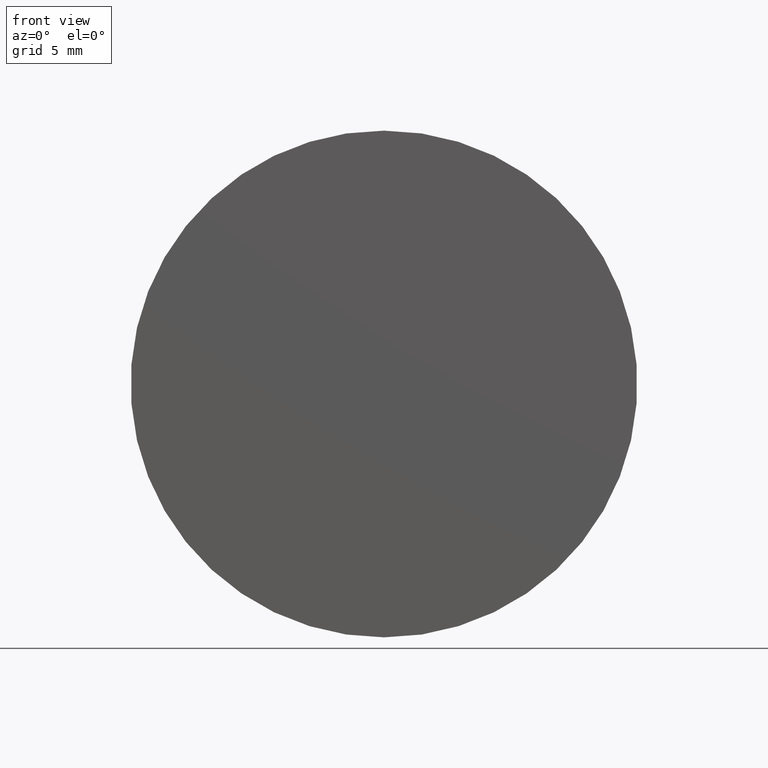
[diagram: clean part render]
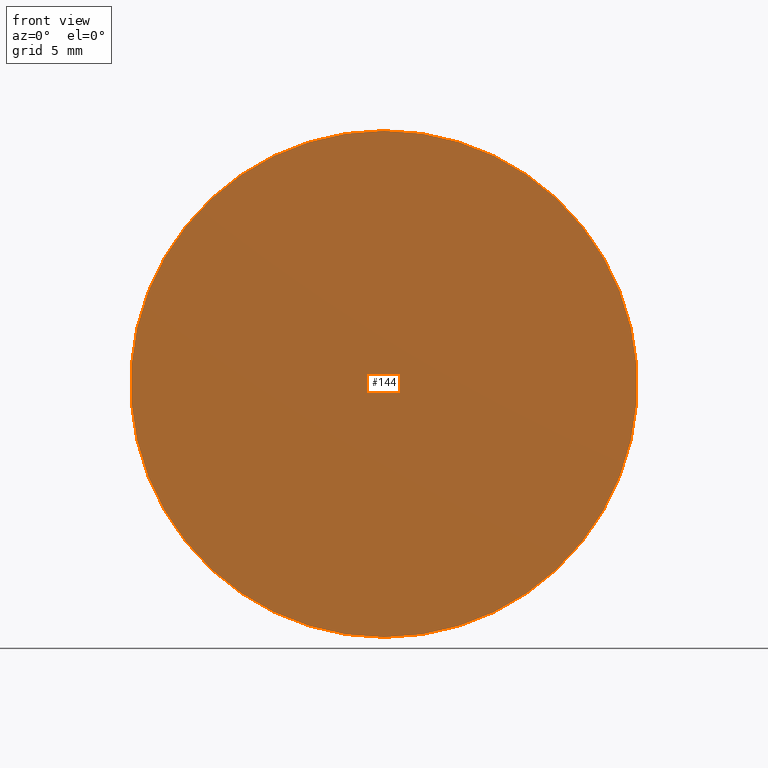
[diagram: same view with one face highlighted and labeled with its STEP entity id]
A machine part, front view. The second image highlights one B-rep face of the part: STEP entity #144.
In plain terms, the highlighted planar face has unit normal (0, -1, 0).
Its self-contained STEP definition (entity closure, byte-faithful):
#5 = DIRECTION ( 'NONE',  ( 0.000000000000000000, 0.000000000000000000, 1.000000000000000000 ) ) ;
#11 = CIRCLE ( 'NONE', #119, 15.00000000000000000 ) ;
#16 = ORIENTED_EDGE ( 'NONE', *, *, #199, .F. ) ;
#17 = CARTESIAN_POINT ( 'NONE',  ( 0.000000000000000000, -1.734723475976807094E-15, 0.000000000000000000 ) ) ;
#20 = CARTESIAN_POINT ( 'NONE',  ( 0.000000000000000000, -1.734723475976807094E-15, 0.000000000000000000 ) ) ;
#40 = EDGE_LOOP ( 'NONE', ( #158, #16 ) ) ;
#55 = AXIS2_PLACEMENT_3D ( 'NONE', #20, #132, #68 ) ;
#58 = VERTEX_POINT ( 'NONE', #129 ) ;
#68 = DIRECTION ( 'NONE',  ( 0.000000000000000000, 0.000000000000000000, 1.000000000000000000 ) ) ;
#75 = VERTEX_POINT ( 'NONE', #148 ) ;
#88 = FACE_OUTER_BOUND ( 'NONE', #40, .T. ) ;
#95 = DIRECTION ( 'NONE',  ( -0.000000000000000000, 1.000000000000000000, -0.000000000000000000 ) ) ;
#97 = PLANE ( 'NONE',  #176 ) ;
#107 = CIRCLE ( 'NONE', #55, 15.00000000000000000 ) ;
#119 = AXIS2_PLACEMENT_3D ( 'NONE', #17, #95, #5 ) ;
#129 = CARTESIAN_POINT ( 'NONE',  ( 0.000000000000000000, -1.734723475976807094E-15, 15.00000000000000000 ) ) ;
#132 = DIRECTION ( 'NONE',  ( -0.000000000000000000, 1.000000000000000000, -0.000000000000000000 ) ) ;
#144 = ADVANCED_FACE ( 'NONE', ( #88 ), #97, .T. ) ;
#148 = CARTESIAN_POINT ( 'NONE',  ( 1.836970198721029589E-15, -1.734723475976807094E-15, -15.00000000000000000 ) ) ;
#158 = ORIENTED_EDGE ( 'NONE', *, *, #179, .F. ) ;
#162 = DIRECTION ( 'NONE',  ( 0.000000000000000000, -0.000000000000000000, -1.000000000000000000 ) ) ;
#170 = CARTESIAN_POINT ( 'NONE',  ( 0.000000000000000000, -9.184850993605147944E-16, 0.000000000000000000 ) ) ;
#176 = AXIS2_PLACEMENT_3D ( 'NONE', #170, #194, #162 ) ;
#179 = EDGE_CURVE ( 'NONE', #58, #75, #11, .T. ) ;
#194 = DIRECTION ( 'NONE',  ( 0.000000000000000000, -1.000000000000000000, 0.000000000000000000 ) ) ;
#199 = EDGE_CURVE ( 'NONE', #75, #58, #107, .T. ) ;